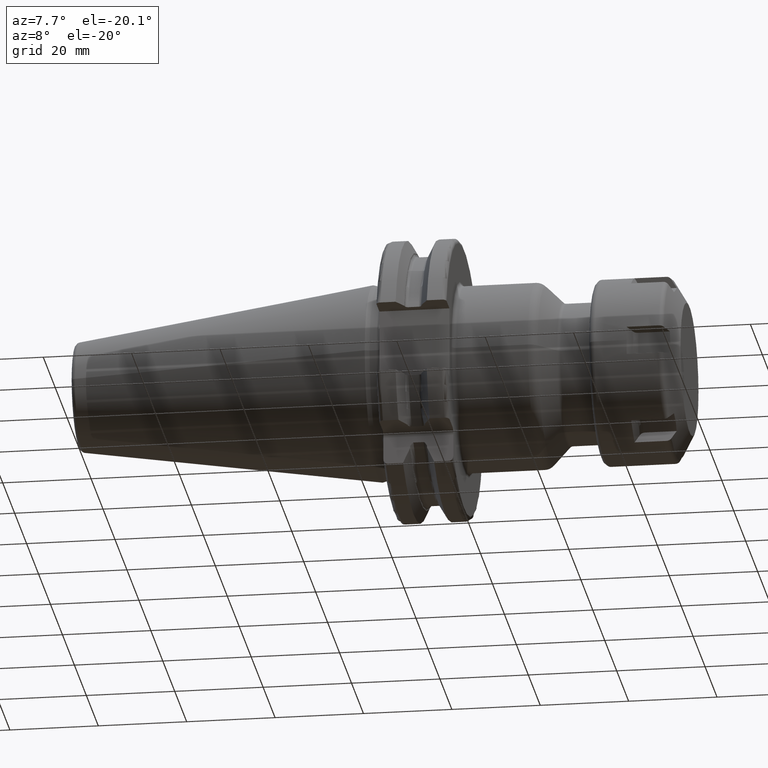
[diagram: clean part render]
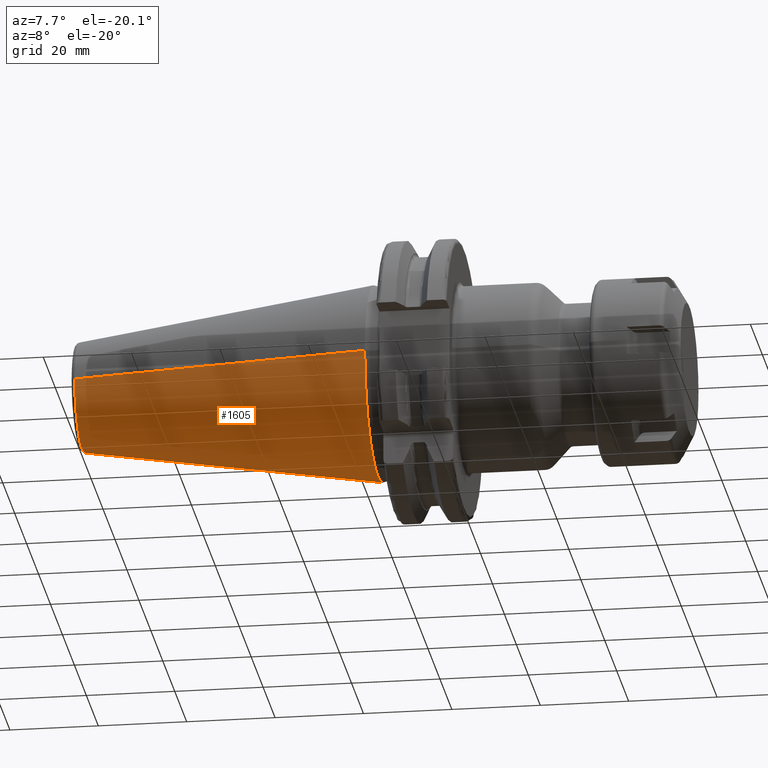
[diagram: same view with one face highlighted and labeled with its STEP entity id]
A machine part, auxiliary view. The second image highlights one B-rep face of the part: STEP entity #1605.
In plain terms, the highlighted conical surface has half-angle 8.298 deg.
Its self-contained STEP definition (entity closure, byte-faithful):
#32=CARTESIAN_POINT('',(-6.743710273571E1,0.E0,0.E0));
#33=DIRECTION('',(-1.E0,0.E0,0.E0));
#34=DIRECTION('',(0.E0,1.E0,0.E0));
#35=AXIS2_PLACEMENT_3D('',#32,#33,#34);
#47=DIRECTION('',(-9.895312636440E-1,-1.443186691705E-1,0.E0));
#48=VECTOR('',#47,6.765568998391E1);
#49=CARTESIAN_POINT('',(-4.896823332305E-1,2.215358204157E1,0.E0));
#50=LINE('',#49,#48);
#51=DIRECTION('',(-9.895312636440E-1,1.443186691705E-1,0.E0));
#52=VECTOR('',#51,6.765568998391E1);
#53=CARTESIAN_POINT('',(-4.896823332305E-1,-2.215358204157E1,0.E0));
#54=LINE('',#53,#52);
#55=CARTESIAN_POINT('',(-4.896823332305E-1,0.E0,0.E0));
#56=DIRECTION('',(-1.E0,0.E0,0.E0));
#57=DIRECTION('',(0.E0,1.E0,0.E0));
#58=AXIS2_PLACEMENT_3D('',#55,#56,#57);
#1264=CARTESIAN_POINT('',(-6.743710273571E1,1.238960290128E1,0.E0));
#1266=VERTEX_POINT('',#1264);
#1268=CARTESIAN_POINT('',(-6.743710273571E1,-1.238960290128E1,0.E0));
#1270=VERTEX_POINT('',#1268);
#1332=CARTESIAN_POINT('',(-4.896823332305E-1,2.215358204157E1,0.E0));
#1333=VERTEX_POINT('',#1332);
#1334=CARTESIAN_POINT('',(-4.896823332305E-1,-2.215358204157E1,0.E0));
#1335=VERTEX_POINT('',#1334);
#1593=CARTESIAN_POINT('',(-3.396339253447E1,0.E0,0.E0));
#1594=DIRECTION('',(1.E0,0.E0,0.E0));
#1595=DIRECTION('',(0.E0,-1.E0,0.E0));
#1596=AXIS2_PLACEMENT_3D('',#1593,#1594,#1595);
#1597=CONICAL_SURFACE('',#1596,1.727159247143E1,8.297826828206E0);
#1598=ORIENTED_EDGE('',*,*,#1583,.T.);
#1599=ORIENTED_EDGE('',*,*,#1560,.T.);
#1600=ORIENTED_EDGE('',*,*,#1587,.F.);
#1602=ORIENTED_EDGE('',*,*,#1601,.F.);
#1603=EDGE_LOOP('',(#1598,#1599,#1600,#1602));
#1604=FACE_OUTER_BOUND('',#1603,.F.);
#1605=ADVANCED_FACE('',(#1604),#1597,.T.);
#36=CIRCLE('',#35,1.238960290128E1);
#59=CIRCLE('',#58,2.215358204157E1);
#1560=EDGE_CURVE('',#1266,#1270,#36,.T.);
#1583=EDGE_CURVE('',#1333,#1266,#50,.T.);
#1587=EDGE_CURVE('',#1335,#1270,#54,.T.);
#1601=EDGE_CURVE('',#1333,#1335,#59,.T.);